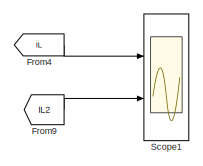
[diagram: root canvas - part 1/4, top left region]
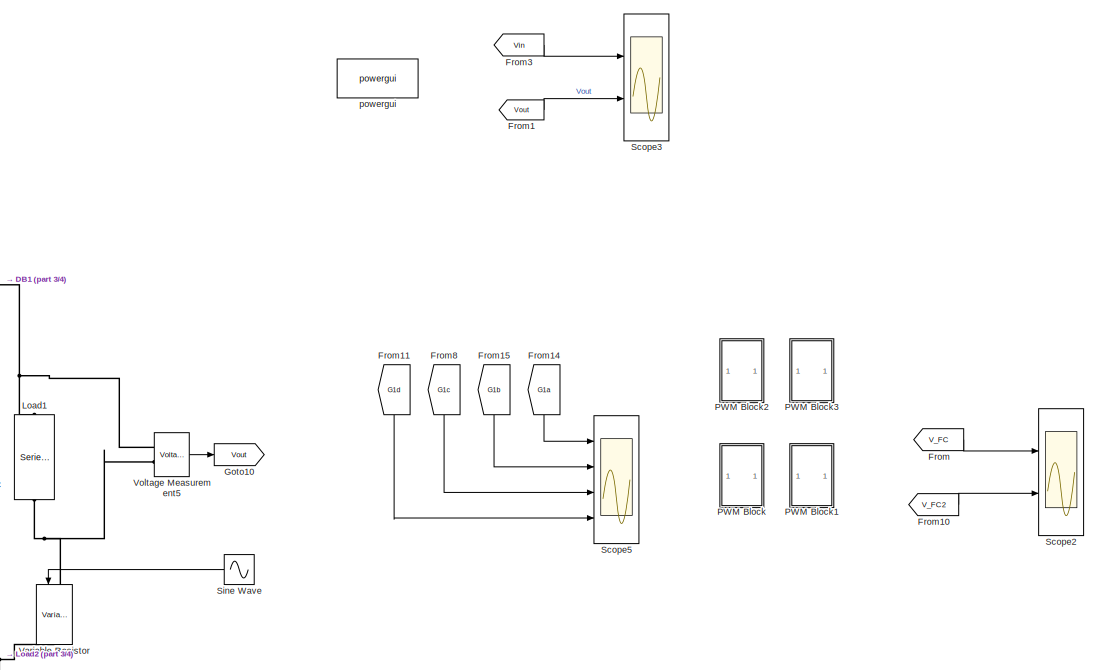
[diagram: root canvas - part 2/4, top right region]
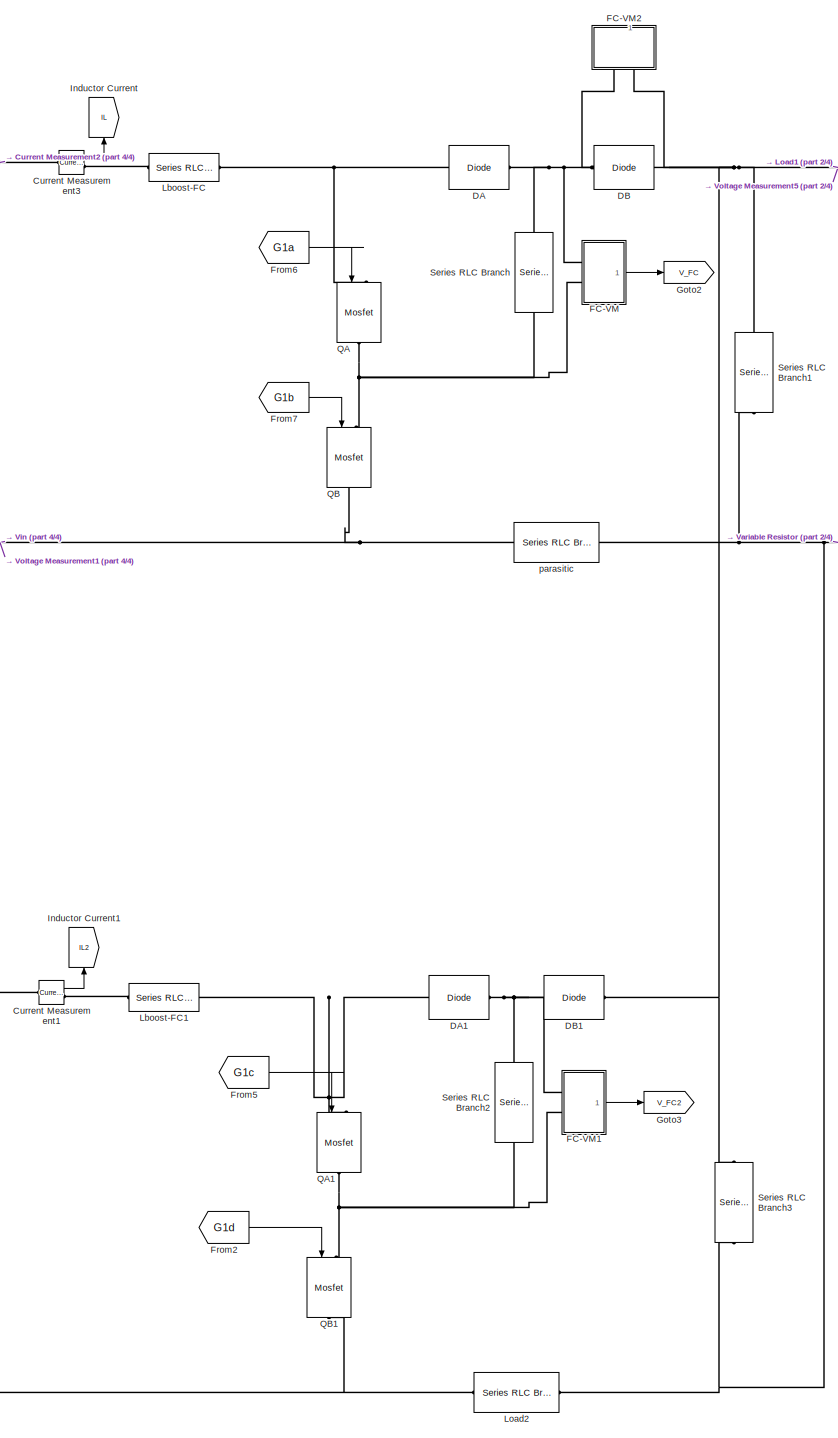
[diagram: root canvas - part 3/4, center side, full height]
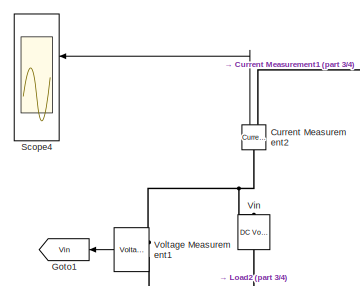
[diagram: root canvas - part 4/4, top left region]
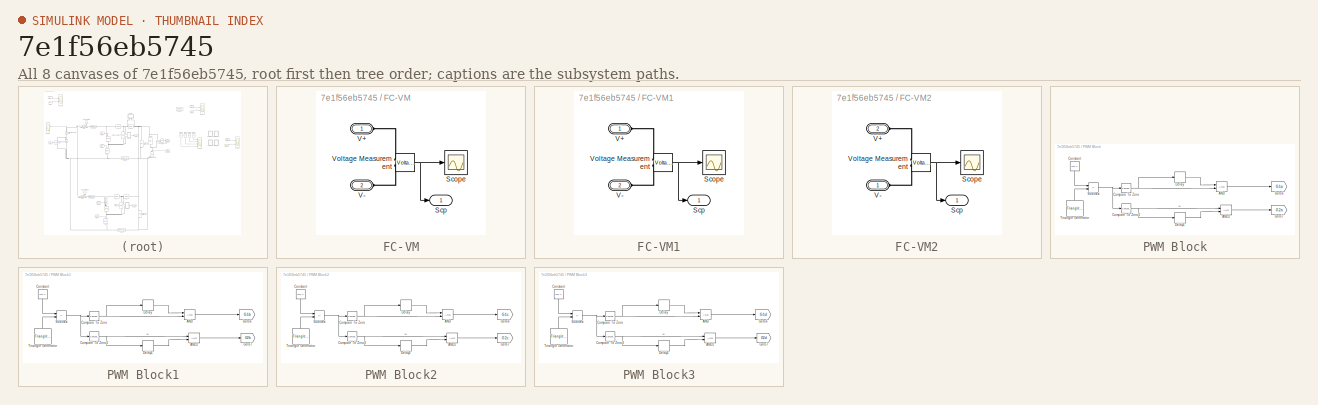
[diagram: thumbnail index - all 8 canvases of the model, root first then tree order]
MODEL slx_7e1f56eb5745
KIND model
CONFIG AbsTol = auto
CONFIG EnableMultiTasking = on
CONFIG FixedStep = sampleTime
CONFIG InitFcn = flying_capacitor_parameters
CONFIG MaxStep = 1e-4
CONFIG MinStep = auto
CONFIG RelTol = 1e-4
CONFIG SampleTimeConstraint = Unconstrained
CONFIG SolverName = FixedStepDiscrete
CONFIG StartTime = 0.0
CONFIG StopTime = 2
WORKSPACE source: mxarray member
WORKSPACE Phase1 = 0
BLOCK [Reference] Current Measurement1  REF=spsCurrentMeasurementLib/Current Measurement
  Ports = [0, 1, 0, 0, 0, 1, 1]
  SourceBlock = spsCurrentMeasurementLib/Current Measurement
  SourceProductBaseCode = PS
  SourceType = Current Measurement
  UserDataPersistent = on
BLOCK [Reference] Current Measurement2  REF=spsCurrentMeasurementLib/Current Measurement
  NameLocation = right
  Ports = [0, 1, 0, 0, 0, 1, 1]
  SourceBlock = spsCurrentMeasurementLib/Current Measurement
  SourceProductBaseCode = PS
  SourceType = Current Measurement
  UserDataPersistent = on
BLOCK [Reference] Current Measurement3  REF=spsCurrentMeasurementLib/Current Measurement
  Ports = [0, 1, 0, 0, 0, 1, 1]
  SourceBlock = spsCurrentMeasurementLib/Current Measurement
  SourceProductBaseCode = PS
  SourceType = Current Measurement
  UserDataPersistent = on
BLOCK [Reference] DA  REF=spsDiodeLib/Diode
  NameLocation = top
  Ports = [0, 0, 0, 0, 0, 1, 1]
  SourceBlock = spsDiodeLib/Diode
  SourceProductBaseCode = PS
  SourceType = Diode
BLOCK [Reference] DA1  REF=spsDiodeLib/Diode
  NameLocation = top
  Ports = [0, 0, 0, 0, 0, 1, 1]
  SourceBlock = spsDiodeLib/Diode
  SourceProductBaseCode = PS
  SourceType = Diode
BLOCK [Reference] DB  REF=spsDiodeLib/Diode
  NameLocation = top
  Ports = [0, 0, 0, 0, 0, 1, 1]
  SourceBlock = spsDiodeLib/Diode
  SourceProductBaseCode = PS
  SourceType = Diode
BLOCK [Reference] DB1  REF=spsDiodeLib/Diode
  NameLocation = top
  Ports = [0, 0, 0, 0, 0, 1, 1]
  SourceBlock = spsDiodeLib/Diode
  SourceProductBaseCode = PS
  SourceType = Diode
BLOCK [SubSystem] FC-VM
  Ports = [0, 1, 0, 0, 0, 2]
  RequestExecContextInheritance = off
BLOCK [Scope] FC-VM/Scope
  Floating = off
  NumInputPorts = 1
  Ports = [1]
  ScopeSpecificationString = Simulink.scopes.TimeScopeBlockCfg('CurrentConfiguration', extmgr.ConfigurationSet(extmgr.Configuration('Core','General UI',true),extmgr.Configuration('Core','Source UI',true),extmgr.Configuration('Sources','WiredSimulink',true,'DataLoggingVariableName','ScopeData1'),extmgr.Configuration('Visuals','Time Domain',true),extmgr.Configuration('Tools','Plot Navigation',true),extmgr.Configuration('Tools',...<+40ch>
BLOCK [Outport] FC-VM/Scp
BLOCK [PMIOPort] FC-VM/V+
  Side = Left
BLOCK [PMIOPort] FC-VM/V-
  Port = 2
  Side = Left
BLOCK [Reference] FC-VM/Voltage Measurement  REF=spsVoltageMeasurementLib/Voltage Measurement
  Ports = [0, 1, 0, 0, 0, 2]
  SourceBlock = spsVoltageMeasurementLib/Voltage Measurement
  SourceProductBaseCode = PS
  SourceType = Voltage Measurement
  UserDataPersistent = on
BLOCK [SubSystem] FC-VM1
  Ports = [0, 1, 0, 0, 0, 2]
  RequestExecContextInheritance = off
BLOCK [Scope] FC-VM1/Scope
  Floating = off
  NumInputPorts = 1
  Ports = [1]
  ScopeSpecificationString = Simulink.scopes.TimeScopeBlockCfg('CurrentConfiguration', extmgr.ConfigurationSet(extmgr.Configuration('Core','General UI',true),extmgr.Configuration('Core','Source UI',true),extmgr.Configuration('Sources','WiredSimulink',true,'DataLoggingVariableName','ScopeData1'),extmgr.Configuration('Visuals','Time Domain',true),extmgr.Configuration('Tools','Plot Navigation',true),extmgr.Configuration('Tools',...<+40ch>
BLOCK [Outport] FC-VM1/Scp
BLOCK [PMIOPort] FC-VM1/V+
  Side = Left
BLOCK [PMIOPort] FC-VM1/V-
  Port = 2
  Side = Left
BLOCK [Reference] FC-VM1/Voltage Measurement  REF=spsVoltageMeasurementLib/Voltage Measurement
  Ports = [0, 1, 0, 0, 0, 2]
  SourceBlock = spsVoltageMeasurementLib/Voltage Measurement
  SourceProductBaseCode = PS
  SourceType = Voltage Measurement
  UserDataPersistent = on
BLOCK [SubSystem] FC-VM2
  NameLocation = right
  Ports = [0, 1, 0, 0, 0, 2]
  RequestExecContextInheritance = off
BLOCK [Scope] FC-VM2/Scope
  Floating = off
  NumInputPorts = 1
  Ports = [1]
  ScopeSpecificationString = Simulink.scopes.TimeScopeBlockCfg('CurrentConfiguration', extmgr.ConfigurationSet(extmgr.Configuration('Core','General UI',true),extmgr.Configuration('Core','Source UI',true),extmgr.Configuration('Sources','WiredSimulink',true,'DataLoggingVariableName','ScopeData1'),extmgr.Configuration('Visuals','Time Domain',true,'SerializedDisplays',{struct('MinYLimReal','-136.12748','MaxYLimReal','1462.47001',...<+1415ch>
BLOCK [Outport] FC-VM2/Scp
BLOCK [PMIOPort] FC-VM2/V+
  Port = 2
  Side = Left
BLOCK [PMIOPort] FC-VM2/V-
  Side = Left
BLOCK [Reference] FC-VM2/Voltage Measurement  REF=spsVoltageMeasurementLib/Voltage Measurement
  Ports = [0, 1, 0, 0, 0, 2]
  SourceBlock = spsVoltageMeasurementLib/Voltage Measurement
  SourceProductBaseCode = PS
  SourceType = Voltage Measurement
  UserDataPersistent = on
BLOCK [From] From
  GotoTag = V_FC
BLOCK [From] From1
  GotoTag = Vout
BLOCK [From] From10
  GotoTag = V_FC2
BLOCK [From] From11
  GotoTag = G1d
  NameLocation = left
  TagVisibility = global
BLOCK [From] From14
  GotoTag = G1a
  NameLocation = left
  TagVisibility = global
BLOCK [From] From15
  GotoTag = G1b
  NameLocation = left
  TagVisibility = global
BLOCK [From] From2
  GotoTag = G1d
  TagVisibility = global
BLOCK [From] From3
  GotoTag = Vin
  NameLocation = top
BLOCK [From] From4
  GotoTag = IL
  NameLocation = top
BLOCK [From] From5
  GotoTag = G1c
  TagVisibility = global
BLOCK [From] From6
  GotoTag = G1a
  TagVisibility = global
BLOCK [From] From7
  GotoTag = G1b
  TagVisibility = global
BLOCK [From] From8
  GotoTag = G1c
  NameLocation = left
  TagVisibility = global
BLOCK [From] From9
  GotoTag = IL2
BLOCK [Goto] Goto1
  GotoTag = Vin
BLOCK [Goto] Goto10
  GotoTag = Vout
BLOCK [Goto] Goto2
  GotoTag = V_FC
BLOCK [Goto] Goto3
  GotoTag = V_FC2
BLOCK [Goto] Inductor Current
  GotoTag = IL
  NameLocation = right
BLOCK [Goto] Inductor Current1
  GotoTag = IL2
  NameLocation = right
BLOCK [Reference] Lboost-FC  REF=spsSeriesRLCBranchLib/Series RLC Branch
  Ports = [0, 0, 0, 0, 0, 1, 1]
  SourceBlock = spsSeriesRLCBranchLib/Series RLC Branch
  SourceProductBaseCode = PS
  SourceType = Series RLC Branch
BLOCK [Reference] Lboost-FC1  REF=spsSeriesRLCBranchLib/Series RLC Branch
  Ports = [0, 0, 0, 0, 0, 1, 1]
  SourceBlock = spsSeriesRLCBranchLib/Series RLC Branch
  SourceProductBaseCode = PS
  SourceType = Series RLC Branch
BLOCK [Reference] Load1  REF=spsSeriesRLCBranchLib/Series RLC Branch
  NameLocation = left
  Ports = [0, 0, 0, 0, 0, 1, 1]
  SourceBlock = spsSeriesRLCBranchLib/Series RLC Branch
  SourceProductBaseCode = PS
  SourceType = Series RLC Branch
BLOCK [Reference] Load2  REF=spsSeriesRLCBranchLib/Series RLC Branch
  NameLocation = top
  Ports = [0, 0, 0, 0, 0, 1, 1]
  SourceBlock = spsSeriesRLCBranchLib/Series RLC Branch
  SourceProductBaseCode = PS
  SourceType = Series RLC Branch
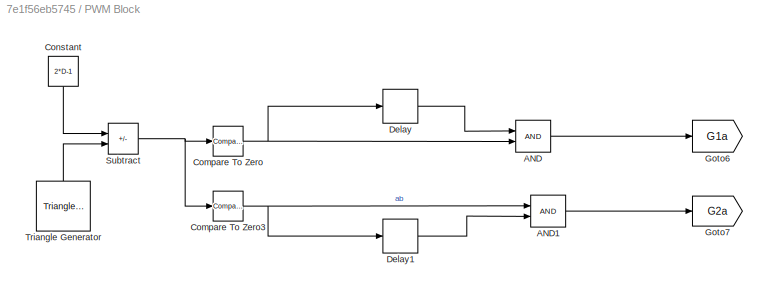
BLOCK [SubSystem] PWM Block
  Ports = []
  RequestExecContextInheritance = off
BLOCK [Logic] PWM Block/AND
  AllPortsSameDT = off
  IconShape = distinctive
  OutDataTypeStr = boolean
  Ports = [2, 1]
BLOCK [Logic] PWM Block/AND1
  AllPortsSameDT = off
  IconShape = distinctive
  OutDataTypeStr = boolean
  Ports = [2, 1]
BLOCK [Reference] PWM Block/Compare To Zero  REF=simulink/Logic and Bit
Operations/Compare
To Zero
  Ports = [1, 1]
  SourceBlock = simulink/Logic and Bit\nOperations/Compare\nTo Zero
  SourceProductBaseCode = SL
  SourceType = Compare To Zero
BLOCK [Reference] PWM Block/Compare To Zero3  REF=simulink/Logic and Bit
Operations/Compare
To Zero
  Ports = [1, 1]
  SourceBlock = simulink/Logic and Bit\nOperations/Compare\nTo Zero
  SourceProductBaseCode = SL
  SourceType = Compare To Zero
BLOCK [Constant] PWM Block/Constant
  NameLocation = left
  Value = 2*D-1
BLOCK [Delay] PWM Block/Delay
  InputPortMap = u0
  Ports = [1, 1]
BLOCK [Delay] PWM Block/Delay1
  InputPortMap = u0
  Ports = [1, 1]
BLOCK [Goto] PWM Block/Goto6
  GotoTag = G1a
  TagVisibility = global
BLOCK [Goto] PWM Block/Goto7
  GotoTag = G2a
  TagVisibility = global
BLOCK [Sum] PWM Block/Subtract
  IconShape = rectangular
  Inputs = +-
  Ports = [2, 1]
BLOCK [Reference] PWM Block/Triangle Generator  REF=spsTriangleGeneratorLib/Triangle
Generator
  NameLocation = right
  Ports = [0, 1]
  SourceBlock = spsTriangleGeneratorLib/Triangle\nGenerator
  SourceProductBaseCode = PS
  SourceType = Triangle Generator
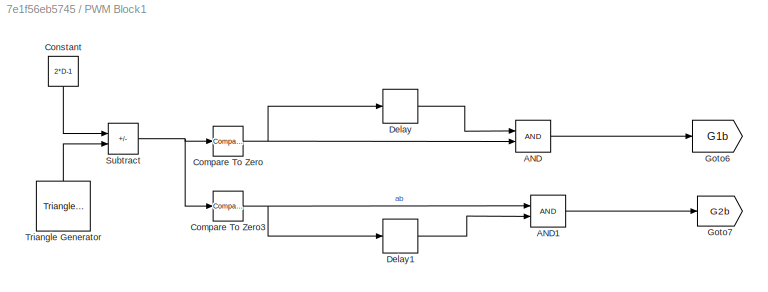
BLOCK [SubSystem] PWM Block1
  Ports = []
  RequestExecContextInheritance = off
BLOCK [Logic] PWM Block1/AND
  AllPortsSameDT = off
  IconShape = distinctive
  OutDataTypeStr = boolean
  Ports = [2, 1]
BLOCK [Logic] PWM Block1/AND1
  AllPortsSameDT = off
  IconShape = distinctive
  OutDataTypeStr = boolean
  Ports = [2, 1]
BLOCK [Reference] PWM Block1/Compare To Zero  REF=simulink/Logic and Bit
Operations/Compare
To Zero
  Ports = [1, 1]
  SourceBlock = simulink/Logic and Bit\nOperations/Compare\nTo Zero
  SourceProductBaseCode = SL
  SourceType = Compare To Zero
BLOCK [Reference] PWM Block1/Compare To Zero3  REF=simulink/Logic and Bit
Operations/Compare
To Zero
  Ports = [1, 1]
  SourceBlock = simulink/Logic and Bit\nOperations/Compare\nTo Zero
  SourceProductBaseCode = SL
  SourceType = Compare To Zero
BLOCK [Constant] PWM Block1/Constant
  NameLocation = left
  Value = 2*D-1
BLOCK [Delay] PWM Block1/Delay
  InputPortMap = u0
  Ports = [1, 1]
BLOCK [Delay] PWM Block1/Delay1
  InputPortMap = u0
  Ports = [1, 1]
BLOCK [Goto] PWM Block1/Goto6
  GotoTag = G1b
  TagVisibility = global
BLOCK [Goto] PWM Block1/Goto7
  GotoTag = G2b
  TagVisibility = global
BLOCK [Sum] PWM Block1/Subtract
  IconShape = rectangular
  Inputs = +-
  Ports = [2, 1]
BLOCK [Reference] PWM Block1/Triangle Generator  REF=spsTriangleGeneratorLib/Triangle
Generator
  NameLocation = right
  Ports = [0, 1]
  SourceBlock = spsTriangleGeneratorLib/Triangle\nGenerator
  SourceProductBaseCode = PS
  SourceType = Triangle Generator
BLOCK [SubSystem] PWM Block2
  Ports = []
  RequestExecContextInheritance = off
BLOCK [Logic] PWM Block2/AND
  AllPortsSameDT = off
  IconShape = distinctive
  OutDataTypeStr = boolean
  Ports = [2, 1]
BLOCK [Logic] PWM Block2/AND1
  AllPortsSameDT = off
  IconShape = distinctive
  OutDataTypeStr = boolean
  Ports = [2, 1]
BLOCK [Reference] PWM Block2/Compare To Zero  REF=simulink/Logic and Bit
Operations/Compare
To Zero
  Ports = [1, 1]
  SourceBlock = simulink/Logic and Bit\nOperations/Compare\nTo Zero
  SourceProductBaseCode = SL
  SourceType = Compare To Zero
BLOCK [Reference] PWM Block2/Compare To Zero3  REF=simulink/Logic and Bit
Operations/Compare
To Zero
  Ports = [1, 1]
  SourceBlock = simulink/Logic and Bit\nOperations/Compare\nTo Zero
  SourceProductBaseCode = SL
  SourceType = Compare To Zero
BLOCK [Constant] PWM Block2/Constant
  NameLocation = left
  Value = 2*D-1
BLOCK [Delay] PWM Block2/Delay
  InputPortMap = u0
  Ports = [1, 1]
BLOCK [Delay] PWM Block2/Delay1
  InputPortMap = u0
  Ports = [1, 1]
BLOCK [Goto] PWM Block2/Goto6
  GotoTag = G1c
  TagVisibility = global
BLOCK [Goto] PWM Block2/Goto7
  GotoTag = G2c
  TagVisibility = global
BLOCK [Sum] PWM Block2/Subtract
  IconShape = rectangular
  Inputs = +-
  Ports = [2, 1]
BLOCK [Reference] PWM Block2/Triangle Generator  REF=spsTriangleGeneratorLib/Triangle
Generator
  NameLocation = right
  Ports = [0, 1]
  SourceBlock = spsTriangleGeneratorLib/Triangle\nGenerator
  SourceProductBaseCode = PS
  SourceType = Triangle Generator
BLOCK [SubSystem] PWM Block3
  Ports = []
  RequestExecContextInheritance = off
BLOCK [Logic] PWM Block3/AND
  AllPortsSameDT = off
  IconShape = distinctive
  OutDataTypeStr = boolean
  Ports = [2, 1]
BLOCK [Logic] PWM Block3/AND1
  AllPortsSameDT = off
  IconShape = distinctive
  OutDataTypeStr = boolean
  Ports = [2, 1]
BLOCK [Reference] PWM Block3/Compare To Zero  REF=simulink/Logic and Bit
Operations/Compare
To Zero
  Ports = [1, 1]
  SourceBlock = simulink/Logic and Bit\nOperations/Compare\nTo Zero
  SourceProductBaseCode = SL
  SourceType = Compare To Zero
BLOCK [Reference] PWM Block3/Compare To Zero3  REF=simulink/Logic and Bit
Operations/Compare
To Zero
  Ports = [1, 1]
  SourceBlock = simulink/Logic and Bit\nOperations/Compare\nTo Zero
  SourceProductBaseCode = SL
  SourceType = Compare To Zero
BLOCK [Constant] PWM Block3/Constant
  NameLocation = left
  Value = 2*D-1
BLOCK [Delay] PWM Block3/Delay
  InputPortMap = u0
  Ports = [1, 1]
BLOCK [Delay] PWM Block3/Delay1
  InputPortMap = u0
  Ports = [1, 1]
BLOCK [Goto] PWM Block3/Goto6
  GotoTag = G1d
  TagVisibility = global
BLOCK [Goto] PWM Block3/Goto7
  GotoTag = G2d
  TagVisibility = global
BLOCK [Sum] PWM Block3/Subtract
  IconShape = rectangular
  Inputs = +-
  Ports = [2, 1]
BLOCK [Reference] PWM Block3/Triangle Generator  REF=spsTriangleGeneratorLib/Triangle
Generator
  NameLocation = right
  Ports = [0, 1]
  SourceBlock = spsTriangleGeneratorLib/Triangle\nGenerator
  SourceProductBaseCode = PS
  SourceType = Triangle Generator
BLOCK [Reference] QA  REF=spsMosfetLib/Mosfet
  NameLocation = left
  Ports = [1, 0, 0, 0, 0, 1, 1]
  SourceBlock = spsMosfetLib/Mosfet
  SourceProductBaseCode = PS
  SourceType = Mosfet
BLOCK [Reference] QA1  REF=spsMosfetLib/Mosfet
  NameLocation = left
  Ports = [1, 0, 0, 0, 0, 1, 1]
  SourceBlock = spsMosfetLib/Mosfet
  SourceProductBaseCode = PS
  SourceType = Mosfet
BLOCK [Reference] QB  REF=spsMosfetLib/Mosfet
  NameLocation = left
  Ports = [1, 0, 0, 0, 0, 1, 1]
  SourceBlock = spsMosfetLib/Mosfet
  SourceProductBaseCode = PS
  SourceType = Mosfet
BLOCK [Reference] QB1  REF=spsMosfetLib/Mosfet
  NameLocation = left
  Ports = [1, 0, 0, 0, 0, 1, 1]
  SourceBlock = spsMosfetLib/Mosfet
  SourceProductBaseCode = PS
  SourceType = Mosfet
BLOCK [Scope] Scope1
  Floating = off
  NumInputPorts = 2
  Ports = [2]
  ScopeSpecificationString = Simulink.scopes.TimeScopeBlockCfg('CurrentConfiguration', extmgr.ConfigurationSet(extmgr.Configuration('Core','General UI',true,'FigureColor',[1 1 1]),extmgr.Configuration('Core','Source UI',true),extmgr.Configuration('Sources','WiredSimulink',true,'DataLoggingVariableName','ScopeData3'),extmgr.Configuration('Visuals','Time Domain',true,'SerializedDisplays',{struct('MinYLimReal','4.51667','MaxYLim...<+2526ch>
BLOCK [Scope] Scope2
  Floating = off
  NumInputPorts = 2
  Ports = [2]
  ScopeSpecificationString = Simulink.scopes.TimeScopeBlockCfg('CurrentConfiguration', extmgr.ConfigurationSet(extmgr.Configuration('Core','General UI',true,'FigureColor',[1 1 1]),extmgr.Configuration('Core','Source UI',true),extmgr.Configuration('Sources','WiredSimulink',true,'DataLoggingVariableName','ScopeData4'),extmgr.Configuration('Visuals','Time Domain',true,'SerializedDisplays',{struct('MinYLimReal','171.70302','MaxYL...<+2564ch>
BLOCK [Scope] Scope3
  Floating = off
  NumInputPorts = 2
  Ports = [2]
  ScopeSpecificationString = Simulink.scopes.TimeScopeBlockCfg('CurrentConfiguration', extmgr.ConfigurationSet(extmgr.Configuration('Core','General UI',true,'FigureColor',[1 1 1]),extmgr.Configuration('Core','Source UI',true),extmgr.Configuration('Sources','WiredSimulink',true,'DataLoggingVariableName','ScopeData4'),extmgr.Configuration('Visuals','Time Domain',true,'SerializedDisplays',{struct('MinYLimReal','829.99077','MaxYL...<+2521ch>
BLOCK [Scope] Scope4
  Floating = off
  NameLocation = top
  NumInputPorts = 2
  Ports = [2]
  ScopeSpecificationString = Simulink.scopes.TimeScopeBlockCfg('CurrentConfiguration', extmgr.ConfigurationSet(extmgr.Configuration('Core','General UI',true,'FigureColor',[1 1 1]),extmgr.Configuration('Core','Source UI',true),extmgr.Configuration('Sources','WiredSimulink',true,'DataLoggingVariableName','ScopeData1'),extmgr.Configuration('Visuals','Time Domain',true,'SerializedDisplays',{struct('MinYLimReal','16.70643','MaxYLi...<+2523ch>
BLOCK [Scope] Scope5
  Floating = off
  NumInputPorts = 4
  Ports = [4]
  ScopeSpecificationString = Simulink.scopes.TimeScopeBlockCfg('CurrentConfiguration', extmgr.ConfigurationSet(extmgr.Configuration('Core','General UI',true,'FigureColor',[1 1 1]),extmgr.Configuration('Core','Source UI',true),extmgr.Configuration('Sources','WiredSimulink',true,'DataLoggingVariableName','ScopeData2'),extmgr.Configuration('Visuals','Time Domain',true,'SerializedDisplays',{struct('MinYLimReal','-0.125','MaxYLimR...<+2360ch>
BLOCK [Reference] Series RLC Branch  REF=spsSeriesRLCBranchLib/Series RLC Branch
  NameLocation = left
  Ports = [0, 0, 0, 0, 0, 1, 1]
  SourceBlock = spsSeriesRLCBranchLib/Series RLC Branch
  SourceProductBaseCode = PS
  SourceType = Series RLC Branch
BLOCK [Reference] Series RLC Branch1  REF=spsSeriesRLCBranchLib/Series RLC Branch
  NameLocation = left
  Ports = [0, 0, 0, 0, 0, 1, 1]
  SourceBlock = spsSeriesRLCBranchLib/Series RLC Branch
  SourceProductBaseCode = PS
  SourceType = Series RLC Branch
BLOCK [Reference] Series RLC Branch2  REF=spsSeriesRLCBranchLib/Series RLC Branch
  NameLocation = left
  Ports = [0, 0, 0, 0, 0, 1, 1]
  SourceBlock = spsSeriesRLCBranchLib/Series RLC Branch
  SourceProductBaseCode = PS
  SourceType = Series RLC Branch
BLOCK [Reference] Series RLC Branch3  REF=spsSeriesRLCBranchLib/Series RLC Branch
  NameLocation = left
  Ports = [0, 0, 0, 0, 0, 1, 1]
  SourceBlock = spsSeriesRLCBranchLib/Series RLC Branch
  SourceProductBaseCode = PS
  SourceType = Series RLC Branch
BLOCK [Sin] Sine Wave
  Amplitude = 0
  Frequency = 2*pi*150
  NameLocation = top
  Ports = [0, 1]
  SampleTime = 0
BLOCK [Reference] Variable Resistor  REF=spsVariableResistorLib/Variable Resistor
  NameLocation = left
  Ports = [1, 0, 0, 0, 0, 1, 1]
  SourceBlock = spsVariableResistorLib/Variable Resistor
  SourceProductBaseCode = PS
  SourceType = Variable Resistor
BLOCK [Reference] Vin  REF=spsDCVoltageSourceLib/DC Voltage Source
  NameLocation = left
  Ports = [0, 0, 0, 0, 0, 1, 1]
  SourceBlock = spsDCVoltageSourceLib/DC Voltage Source
  SourceProductBaseCode = PS
  SourceType = DC Voltage Source
BLOCK [Reference] Voltage Measurement1  REF=spsVoltageMeasurementLib/Voltage Measurement
  Ports = [0, 1, 0, 0, 0, 2]
  SourceBlock = spsVoltageMeasurementLib/Voltage Measurement
  SourceProductBaseCode = PS
  SourceType = Voltage Measurement
  UserDataPersistent = on
BLOCK [Reference] Voltage Measurement5  REF=spsVoltageMeasurementLib/Voltage Measurement
  Ports = [0, 1, 0, 0, 0, 2]
  SourceBlock = spsVoltageMeasurementLib/Voltage Measurement
  SourceProductBaseCode = PS
  SourceType = Voltage Measurement
  UserDataPersistent = on
BLOCK [Reference] parasitic  REF=spsSeriesRLCBranchLib/Series RLC Branch
  NameLocation = top
  Ports = [0, 0, 0, 0, 0, 1, 1]
  SourceBlock = spsSeriesRLCBranchLib/Series RLC Branch
  SourceProductBaseCode = PS
  SourceType = Series RLC Branch
BLOCK [Reference] powergui  REF=spspowerguiLib/powergui
  Ports = []
  Priority = 1
  SourceBlock = spspowerguiLib/powergui
  SourceProductBaseCode = PS
  SourceType = PSB option menu block
LINE Current Measurement1:1 -> Inductor Current1:1
LINE Current Measurement2:1 -> Scope4:1
LINE Current Measurement3:1 -> Inductor Current:1
NET FC-VM/Voltage Measurement:1 -> FC-VM/Scope:1, FC-VM/Scp:1
NET FC-VM1/Voltage Measurement:1 -> FC-VM1/Scope:1, FC-VM1/Scp:1
LINE FC-VM1:1 -> Goto3:1
NET FC-VM2/Voltage Measurement:1 -> FC-VM2/Scope:1, FC-VM2/Scp:1
LINE FC-VM:1 -> Goto2:1
LINE From10:1 -> Scope2:2
LINE From11:1 -> Scope5:4
LINE From14:1 -> Scope5:1
LINE From15:1 -> Scope5:2
LINE From1:1 -> Scope3:2
LINE From2:1 -> QB1:1
LINE From3:1 -> Scope3:1
LINE From4:1 -> Scope1:1
LINE From5:1 -> QA1:1
LINE From6:1 -> QA:1
LINE From7:1 -> QB:1
LINE From8:1 -> Scope5:3
LINE From9:1 -> Scope1:2
LINE From:1 -> Scope2:1
LINE PWM Block/AND1:1 -> PWM Block/Goto7:1
LINE PWM Block/AND:1 -> PWM Block/Goto6:1
NET PWM Block/Compare To Zero3:1 -> PWM Block/AND1:1, PWM Block/Delay1:1
NET PWM Block/Compare To Zero:1 -> PWM Block/AND:2, PWM Block/Delay:1
LINE PWM Block/Constant:1 -> PWM Block/Subtract:1
LINE PWM Block/Delay1:1 -> PWM Block/AND1:2
LINE PWM Block/Delay:1 -> PWM Block/AND:1
NET PWM Block/Subtract:1 -> PWM Block/Compare To Zero3:1, PWM Block/Compare To Zero:1
LINE PWM Block/Triangle Generator:1 -> PWM Block/Subtract:2
LINE PWM Block1/AND1:1 -> PWM Block1/Goto7:1
LINE PWM Block1/AND:1 -> PWM Block1/Goto6:1
NET PWM Block1/Compare To Zero3:1 -> PWM Block1/AND1:1, PWM Block1/Delay1:1
NET PWM Block1/Compare To Zero:1 -> PWM Block1/AND:2, PWM Block1/Delay:1
LINE PWM Block1/Constant:1 -> PWM Block1/Subtract:1
LINE PWM Block1/Delay1:1 -> PWM Block1/AND1:2
LINE PWM Block1/Delay:1 -> PWM Block1/AND:1
NET PWM Block1/Subtract:1 -> PWM Block1/Compare To Zero3:1, PWM Block1/Compare To Zero:1
LINE PWM Block1/Triangle Generator:1 -> PWM Block1/Subtract:2
LINE PWM Block2/AND1:1 -> PWM Block2/Goto7:1
LINE PWM Block2/AND:1 -> PWM Block2/Goto6:1
NET PWM Block2/Compare To Zero3:1 -> PWM Block2/AND1:1, PWM Block2/Delay1:1
NET PWM Block2/Compare To Zero:1 -> PWM Block2/AND:2, PWM Block2/Delay:1
LINE PWM Block2/Constant:1 -> PWM Block2/Subtract:1
LINE PWM Block2/Delay1:1 -> PWM Block2/AND1:2
LINE PWM Block2/Delay:1 -> PWM Block2/AND:1
NET PWM Block2/Subtract:1 -> PWM Block2/Compare To Zero3:1, PWM Block2/Compare To Zero:1
LINE PWM Block2/Triangle Generator:1 -> PWM Block2/Subtract:2
LINE PWM Block3/AND1:1 -> PWM Block3/Goto7:1
LINE PWM Block3/AND:1 -> PWM Block3/Goto6:1
NET PWM Block3/Compare To Zero3:1 -> PWM Block3/AND1:1, PWM Block3/Delay1:1
NET PWM Block3/Compare To Zero:1 -> PWM Block3/AND:2, PWM Block3/Delay:1
LINE PWM Block3/Constant:1 -> PWM Block3/Subtract:1
LINE PWM Block3/Delay1:1 -> PWM Block3/AND1:2
LINE PWM Block3/Delay:1 -> PWM Block3/AND:1
NET PWM Block3/Subtract:1 -> PWM Block3/Compare To Zero3:1, PWM Block3/Compare To Zero:1
LINE PWM Block3/Triangle Generator:1 -> PWM Block3/Subtract:2
LINE Sine Wave:1 -> Variable Resistor:1
LINE Voltage Measurement1:1 -> Goto1:1
LINE Voltage Measurement5:1 -> Goto10:1
PNET net1: Current Measurement1:LConn1 -- Current Measurement2:RConn1 -- Current Measurement3:LConn1
PLINE Current Measurement1:RConn1 -- Lboost-FC1:LConn1
PNET net2: Current Measurement2:LConn1 -- Vin:RConn1 -- Voltage Measurement1:LConn1
PLINE Current Measurement3:RConn1 -- Lboost-FC:LConn1
PNET net3: DA1:LConn1 -- Lboost-FC1:RConn1 -- QA1:LConn1
PNET net4: DA1:RConn1 -- DB1:LConn1 -- FC-VM1:LConn1 -- Series RLC Branch2:LConn1
PNET net5: DA:LConn1 -- Lboost-FC:RConn1 -- QA:LConn1
PNET net6: DA:RConn1 -- DB:LConn1 -- FC-VM2:LConn1 -- FC-VM:LConn1 -- Series RLC Branch:LConn1
PNET net7: DB1:RConn1 -- DB:RConn1 -- FC-VM2:LConn2 -- Load1:LConn1 -- Series RLC Branch1:LConn1 -- Series RLC Branch3:LConn1 -- Voltage Measurement5:LConn1
PLINE FC-VM/V+:RConn1 -- FC-VM/Voltage Measurement:LConn1
PLINE FC-VM/V-:RConn1 -- FC-VM/Voltage Measurement:LConn2
PLINE FC-VM1/V+:RConn1 -- FC-VM1/Voltage Measurement:LConn1
PLINE FC-VM1/V-:RConn1 -- FC-VM1/Voltage Measurement:LConn2
PNET net8: FC-VM1:LConn2 -- QA1:RConn1 -- QB1:LConn1 -- Series RLC Branch2:RConn1
PLINE FC-VM2/V+:RConn1 -- FC-VM2/Voltage Measurement:LConn1
PLINE FC-VM2/V-:RConn1 -- FC-VM2/Voltage Measurement:LConn2
PNET net9: FC-VM:LConn2 -- QA:RConn1 -- QB:LConn1 -- Series RLC Branch:RConn1
PNET net10: Load1:RConn1 -- Variable Resistor:LConn1 -- Voltage Measurement5:LConn2
PNET net11: Load2:LConn1 -- Series RLC Branch1:RConn1 -- Series RLC Branch3:RConn1 -- Variable Resistor:RConn1 -- parasitic:LConn1
PNET net12: Load2:RConn1 -- QB1:RConn1 -- QB:RConn1 -- Vin:LConn1 -- Voltage Measurement1:LConn2 -- parasitic:RConn1
note: NET lines group one-source signal fan-out (src -> all destinations, sorted); 1:1 wires keep LINE; PNET lines group multi-terminal physical nets as a canonical sorted terminal list (undirected conserving connections); 2-terminal nets keep the pairwise PLINE form
